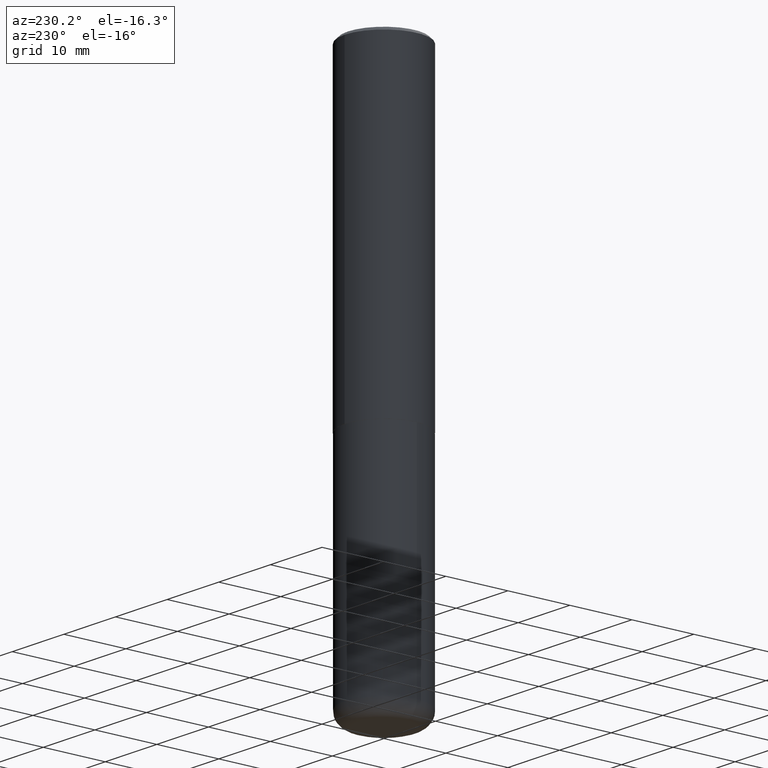
[diagram: clean part render]
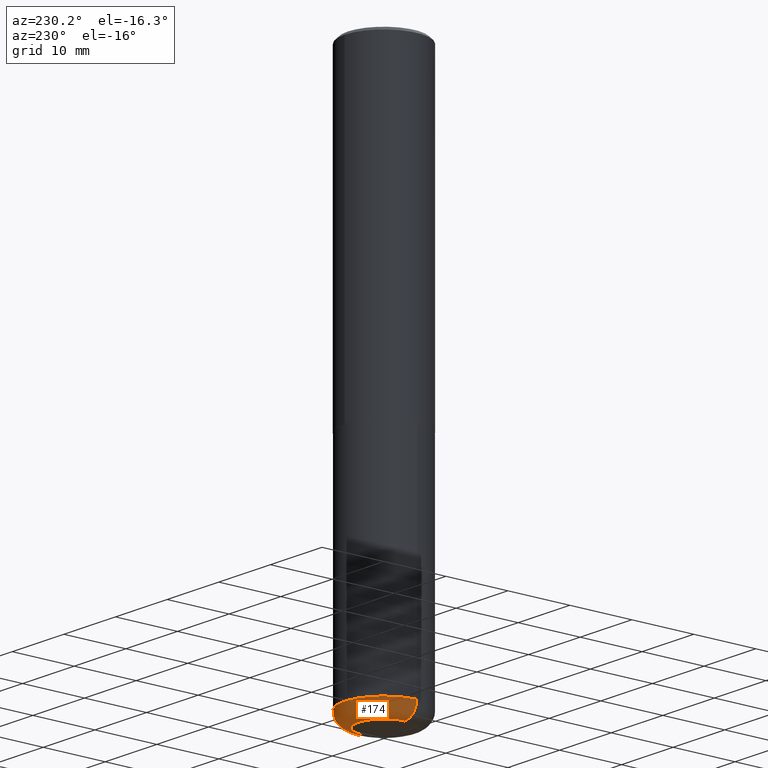
[diagram: same view with one face highlighted and labeled with its STEP entity id]
A machine part, auxiliary view. The second image highlights one B-rep face of the part: STEP entity #174.
In plain terms, the highlighted toroidal blend (fillet) surface has major radius 4.064 mm and minor (blend) radius 2.286 mm.
Its self-contained STEP definition (entity closure, byte-faithful):
#8 = DIRECTION ( 'NONE',  ( -2.445468806185136597E-29, 3.491481338843145583E-15, 1.000000000000000000 ) ) ;
#13 = ORIENTED_EDGE ( 'NONE', *, *, #31, .T. ) ;
#23 = EDGE_CURVE ( 'NONE', #63, #66, #35, .T. ) ;
#28 = AXIS2_PLACEMENT_3D ( 'NONE', #267, #331, #271 ) ;
#31 = EDGE_CURVE ( 'NONE', #63, #56, #339, .T. ) ;
#34 = FACE_OUTER_BOUND ( 'NONE', #103, .T. ) ;
#35 = CIRCLE ( 'NONE', #190, 0.08999999999999964972 ) ;
#53 = VERTEX_POINT ( 'NONE', #409 ) ;
#54 = CARTESIAN_POINT ( 'NONE',  ( -0.1600000000000000033, -1.076908298823896635E-14, -3.410000000000000142 ) ) ;
#56 = VERTEX_POINT ( 'NONE', #323 ) ;
#63 = VERTEX_POINT ( 'NONE', #228 ) ;
#66 = VERTEX_POINT ( 'NONE', #283 ) ;
#91 = CIRCLE ( 'NONE', #340, 0.08999999999999964972 ) ;
#92 = CARTESIAN_POINT ( 'NONE',  ( 8.339048629091315302E-29, -1.190595136545512608E-14, -3.410000000000000142 ) ) ;
#103 = EDGE_LOOP ( 'NONE', ( #13, #206, #118, #281 ) ) ;
#116 = DIRECTION ( 'NONE',  ( 7.105427357601001859E-15, 1.000000000000000000, -3.491481338843145583E-15 ) ) ;
#118 = ORIENTED_EDGE ( 'NONE', *, *, #253, .F. ) ;
#136 = AXIS2_PLACEMENT_3D ( 'NONE', #261, #8, #139 ) ;
#139 = DIRECTION ( 'NONE',  ( 1.000000000000000000, -6.982962677686265133E-15, 4.883557194083112340E-29 ) ) ;
#174 = ADVANCED_FACE ( 'NONE', ( #34 ), #289, .T. ) ;
#190 = AXIS2_PLACEMENT_3D ( 'NONE', #199, #294, #264 ) ;
#199 = CARTESIAN_POINT ( 'NONE',  ( 0.1600000000000000033, -1.302322539388492780E-14, -3.410000000000000142 ) ) ;
#206 = ORIENTED_EDGE ( 'NONE', *, *, #312, .T. ) ;
#218 = DIRECTION ( 'NONE',  ( -2.445468806185136597E-29, 3.491481338843145583E-15, 1.000000000000000000 ) ) ;
#228 = CARTESIAN_POINT ( 'NONE',  ( 0.1600000000000000033, -1.333745871438080791E-14, -3.499999999999999112 ) ) ;
#249 = DIRECTION ( 'NONE',  ( -1.000000000000000000, 7.105427357600996337E-15, 0.000000000000000000 ) ) ;
#253 = EDGE_CURVE ( 'NONE', #66, #53, #318, .T. ) ;
#261 = CARTESIAN_POINT ( 'NONE',  ( 8.339048629091315302E-29, -1.190595136545512608E-14, -3.410000000000000142 ) ) ;
#264 = DIRECTION ( 'NONE',  ( 1.000000000000000000, -6.982962677686273810E-15, 0.000000000000000000 ) ) ;
#267 = CARTESIAN_POINT ( 'NONE',  ( 8.559140821647976968E-29, -1.222018468595100619E-14, -3.499999999999999112 ) ) ;
#271 = DIRECTION ( 'NONE',  ( 1.000000000000000000, -6.982962677686259611E-15, 0.000000000000000000 ) ) ;
#281 = ORIENTED_EDGE ( 'NONE', *, *, #23, .F. ) ;
#283 = CARTESIAN_POINT ( 'NONE',  ( 0.2499999999999998612, -1.365169203487669276E-14, -3.410000000000000142 ) ) ;
#289 = TOROIDAL_SURFACE ( 'NONE', #136, 0.1600000000000000033, 0.08999999999999967748 ) ;
#294 = DIRECTION ( 'NONE',  ( -6.982962677686266711E-15, -1.000000000000000000, 3.491481338843145583E-15 ) ) ;
#312 = EDGE_CURVE ( 'NONE', #56, #53, #91, .T. ) ;
#318 = CIRCLE ( 'NONE', #355, 0.2500000000000000555 ) ;
#323 = CARTESIAN_POINT ( 'NONE',  ( -0.1600000000000000033, -1.060645541739486182E-14, -3.499999999999999112 ) ) ;
#331 = DIRECTION ( 'NONE',  ( -2.445468806185136597E-29, 3.491481338843145583E-15, 1.000000000000000000 ) ) ;
#339 = CIRCLE ( 'NONE', #28, 0.1600000000000000033 ) ;
#340 = AXIS2_PLACEMENT_3D ( 'NONE', #54, #116, #249 ) ;
#350 = DIRECTION ( 'NONE',  ( 1.000000000000000000, -6.982962677686269077E-15, 0.000000000000000000 ) ) ;
#355 = AXIS2_PLACEMENT_3D ( 'NONE', #92, #218, #350 ) ;
#409 = CARTESIAN_POINT ( 'NONE',  ( -0.2499999999999998612, -1.012959452605487719E-14, -3.410000000000000142 ) ) ;